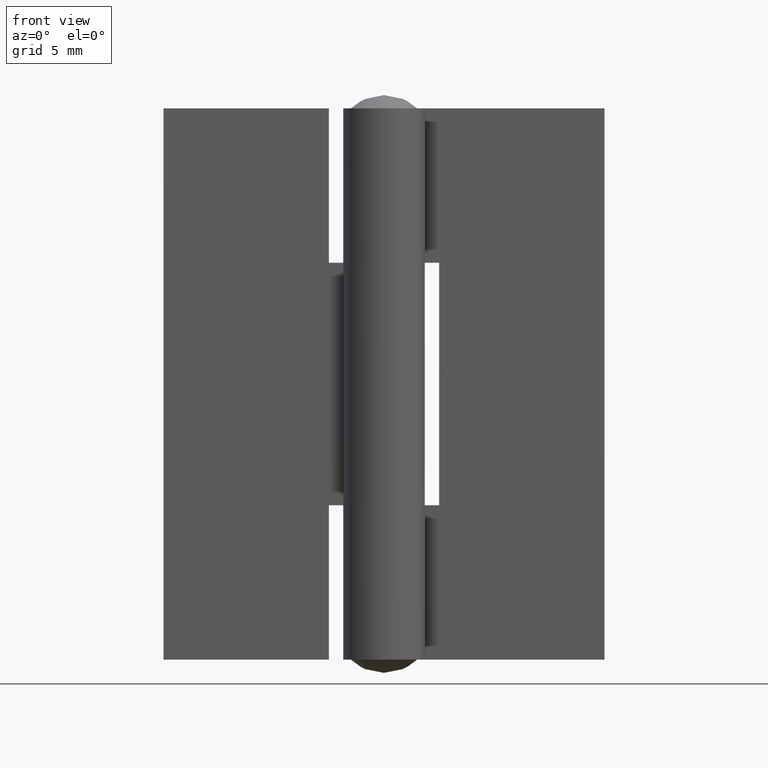
[diagram: clean part render]
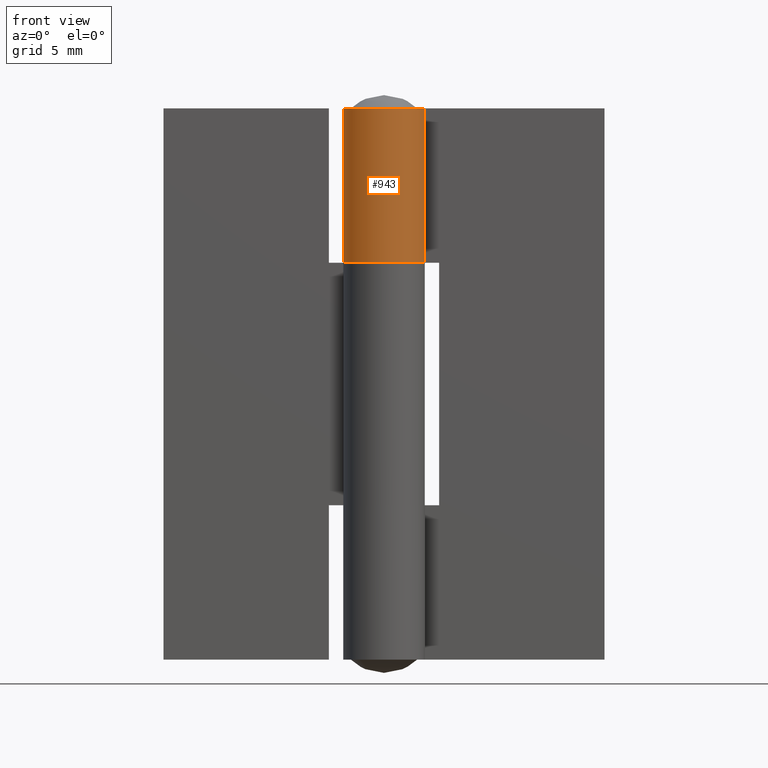
[diagram: same view with one face highlighted and labeled with its STEP entity id]
A machine part, front view. The second image highlights one B-rep face of the part: STEP entity #943.
In plain terms, the highlighted face is a freeform B-spline surface patch.
Its self-contained STEP definition (entity closure, byte-faithful):
#832=CARTESIAN_POINT('',(0.057448950785809,1.849107789733635,25.175000000000001));
#833=CARTESIAN_POINT('',(0.057448950785809,1.849107789733635,17.820625000000000));
#834=CARTESIAN_POINT('',(-2.267198140182571,1.921331019263513,25.174999999999997));
#835=CARTESIAN_POINT('',(-2.267198140182571,1.921331019263513,17.820625000000003));
#836=CARTESIAN_POINT('',(-1.814638478927861,-0.359982208997022,25.175000000000001));
#837=CARTESIAN_POINT('',(-1.814638478927861,-0.359982208997022,17.820625000000000));
#838=CARTESIAN_POINT('',(-1.362078817673150,-2.641295437257558,25.174999999999997));
#839=CARTESIAN_POINT('',(-1.362078817673150,-2.641295437257558,17.820625000000003));
#840=CARTESIAN_POINT('',(0.758960727389731,-1.687151034815807,25.175000000000001));
#841=CARTESIAN_POINT('',(0.758960727389731,-1.687151034815807,17.820625000000000));
#842=CARTESIAN_POINT('',(2.880000272452614,-0.733006632374056,25.174999999999997));
#843=CARTESIAN_POINT('',(2.880000272452614,-0.733006632374056,17.820625000000003));
#844=CARTESIAN_POINT('',(1.473180447264047,1.119035017235341,25.175000000000001));
#845=CARTESIAN_POINT('',(1.473180447264047,1.119035017235341,17.820625000000000));
#853=(BOUNDED_SURFACE()B_SPLINE_SURFACE(1,2,((#832,#834,#836,#838,#840,#842,#844),(#833,#835,#837,#839,#841,#843,#845)),.UNSPECIFIED.,.F.,.F.,.U.)B_SPLINE_SURFACE_WITH_KNOTS((2,2),(3,2,2,3),(0.0,7.354375000000008),(0.0,3.569336282050021,7.138672564100043,10.708008846150070),.UNSPECIFIED.)GEOMETRIC_REPRESENTATION_ITEM()RATIONAL_B_SPLINE_SURFACE(((1.0,0.622514636637620,1.0,0.622514636637620,1.0,0.622514636637620,1.0),(1.0,0.622514636637620,1.0,0.622514636637620,1.0,0.622514636637620,1.0)))REPRESENTATION_ITEM('')SURFACE());
#854=CARTESIAN_POINT('',(1.556437599134330,1.000000999999980,18.0));
#855=VERTEX_POINT('',#854);
#856=CARTESIAN_POINT('',(0.0,1.850000000000000,18.0));
#857=VERTEX_POINT('',#856);
#858=CARTESIAN_POINT('',(1.556437599134330,1.000000999999980,18.0));
#859=CARTESIAN_POINT('',(1.645919825635006,0.860829780855806,18.000000000000011));
#860=CARTESIAN_POINT('',(1.751801814528160,0.633910030155247,17.999999999999989));
#861=CARTESIAN_POINT('',(1.842656490412984,0.255607475621502,17.999999999999950));
#862=CARTESIAN_POINT('',(1.859953476113069,-0.057737603864439,18.000000000000110));
#863=CARTESIAN_POINT('',(1.810087848978903,-0.437303524180525,18.000000000000089));
#864=CARTESIAN_POINT('',(1.690744839417296,-0.789556189111853,17.999999999999918));
#865=CARTESIAN_POINT('',(1.488861190725547,-1.116033149587342,18.000000000000071));
#866=CARTESIAN_POINT('',(1.230694550823562,-1.399102232063447,17.999999999999918));
#867=CARTESIAN_POINT('',(0.929084791813627,-1.616700215654760,18.000000000000160));
#868=CARTESIAN_POINT('',(0.594708852214155,-1.761287309575846,17.999999999999861));
#869=CARTESIAN_POINT('',(0.290770293260022,-1.835014441136614,17.999999999999769));
#870=CARTESIAN_POINT('',(0.029767707495961,-1.855417184848889,18.000000000000160));
#871=CARTESIAN_POINT('',(-0.256528524619145,-1.839335182779288,17.999999999999989));
#872=CARTESIAN_POINT('',(-0.538198557498395,-1.780551337592821,17.999999999999869));
#873=CARTESIAN_POINT('',(-0.816174271732572,-1.667456362821217,17.999999999999979));
#874=CARTESIAN_POINT('',(-1.069102207780483,-1.518990550069348,17.999999999999719));
#875=CARTESIAN_POINT('',(-1.286755680904906,-1.340951127820679,18.000000000000131));
#876=CARTESIAN_POINT('',(-1.526615183811192,-1.067574267645642,17.999999999999961));
#877=CARTESIAN_POINT('',(-1.698438537129875,-0.766689285425438,18.000000000000011));
#878=CARTESIAN_POINT('',(-1.798458854911599,-0.456910315739383,18.0));
#879=CARTESIAN_POINT('',(-1.852753602950904,-0.155822353402806,18.0));
#880=CARTESIAN_POINT('',(-1.855388730148950,0.170798188831437,18.000000000000011));
#881=CARTESIAN_POINT('',(-1.786103945487406,0.515408104717369,18.0));
#882=CARTESIAN_POINT('',(-1.671121020139616,0.813105263296230,18.0));
#883=CARTESIAN_POINT('',(-1.502139078870080,1.099094937938763,18.000000000000021));
#884=CARTESIAN_POINT('',(-1.256193635277023,1.376938425293635,17.999999999999879));
#885=CARTESIAN_POINT('',(-0.967525397179898,1.589454287989719,18.000000000000359));
#886=CARTESIAN_POINT('',(-0.691499042985504,1.722386566346201,18.000000000000270));
#887=CARTESIAN_POINT('',(-0.381794757903553,1.821467307968923,17.999999999995492));
#888=CARTESIAN_POINT('',(-0.152728536403342,1.850036460129155,18.000000000010662));
#889=CARTESIAN_POINT('',(0.0,1.850000000000000,18.0));
#890=B_SPLINE_CURVE_WITH_KNOTS('',3,(#858,#859,#860,#861,#862,#863,#864,#865,#866,#867,#868,#869,#870,#871,#872,#873,#874,#875,#876,#877,#878,#879,#880,#881,#882,#883,#884,#885,#886,#887,#888,#889),.UNSPECIFIED.,.F.,.U.,(4,1,1,1,1,1,1,1,1,1,1,1,1,1,1,1,1,1,1,1,1,1,1,1,1,1,1,1,1,4),(0.000000114528135,0.496349072351054,0.744538283891206,1.164535107637647,1.431809446768273,1.889993571195217,2.271813463196566,2.577250648484553,3.035419288645493,3.379058500784693,3.665423549352131,3.970878595700526,4.161790382304358,4.524518864471528,4.829968298946214,5.059033198274620,5.402679579546445,5.669944953262925,6.147220301458285,6.433585749664084,6.643580717549677,7.063576610935042,7.407203785657734,7.693557695133899,8.018111380898430,8.399925808115494,8.800833840093958,9.087195856335528,9.316286591924547,9.774461188009880),.UNSPECIFIED.);
#891=EDGE_CURVE('',#855,#857,#890,.T.);
#892=ORIENTED_EDGE('',*,*,#891,.F.);
#893=CARTESIAN_POINT('',(1.556437599134330,1.000000999999980,25.0));
#894=VERTEX_POINT('',#893);
#895=CARTESIAN_POINT('',(1.556437599134330,1.000000999999980,25.0));
#896=CARTESIAN_POINT('',(1.556437599134330,1.000000999999980,18.0));
#897=QUASI_UNIFORM_CURVE('',1,(#895,#896),.UNSPECIFIED.,.F.,.U.);
#898=EDGE_CURVE('',#894,#855,#897,.T.);
#899=ORIENTED_EDGE('',*,*,#898,.F.);
#900=CARTESIAN_POINT('',(0.0,1.850000000000000,25.0));
#901=VERTEX_POINT('',#900);
#902=CARTESIAN_POINT('',(1.556437599134330,1.000000999999980,25.0));
#903=CARTESIAN_POINT('',(1.618355905515275,0.903637955449448,25.000000000000021));
#904=CARTESIAN_POINT('',(1.741905231044990,0.665328155338114,24.999999999999961));
#905=CARTESIAN_POINT('',(1.843026681019331,0.287473150423303,25.0));
#906=CARTESIAN_POINT('',(1.859491199933395,-0.127835243504097,25.000000000000039));
#907=CARTESIAN_POINT('',(1.797038492051239,-0.487519253692367,24.999999999999979));
#908=CARTESIAN_POINT('',(1.675279595897098,-0.803281128971898,25.000000000000050));
#909=CARTESIAN_POINT('',(1.533806343484956,-1.045883000384392,24.999999999999979));
#910=CARTESIAN_POINT('',(1.362988320039732,-1.260430231992279,25.000000000000082));
#911=CARTESIAN_POINT('',(1.125707274112699,-1.483274455401717,24.999999999999549));
#912=CARTESIAN_POINT('',(0.837562809860763,-1.663065875503523,25.000000000001140));
#913=CARTESIAN_POINT('',(0.491320325500630,-1.794093255870894,24.999999999998071));
#914=CARTESIAN_POINT('',(0.201855957308056,-1.847129620850378,25.000000000000870));
#915=CARTESIAN_POINT('',(-0.116771267153451,-1.853902121301326,24.999999999999609));
#916=CARTESIAN_POINT('',(-0.446312797883241,-1.809657714318856,25.000000000000529));
#917=CARTESIAN_POINT('',(-0.795881187822179,-1.684003550608237,24.999999999999389));
#918=CARTESIAN_POINT('',(-1.068779549682788,-1.518042782608670,25.000000000000352));
#919=CARTESIAN_POINT('',(-1.280021112438393,-1.343423328178305,24.999999999998959));
#920=CARTESIAN_POINT('',(-1.492292524347340,-1.113729901054172,25.000000000000728));
#921=CARTESIAN_POINT('',(-1.683153409106480,-0.802280073981456,24.999999999999790));
#922=CARTESIAN_POINT('',(-1.819065762866650,-0.409496769860061,25.000000000000028));
#923=CARTESIAN_POINT('',(-1.863722062760556,-0.027587346495995,25.000000000000011));
#924=CARTESIAN_POINT('',(-1.829695210815392,0.328687251103467,25.000000000000011));
#925=CARTESIAN_POINT('',(-1.749331056287990,0.624322498558397,25.0));
#926=CARTESIAN_POINT('',(-1.619157814194023,0.915693984815633,24.999999999999989));
#927=CARTESIAN_POINT('',(-1.413033715804921,1.216513178187346,25.000000000000149));
#928=CARTESIAN_POINT('',(-1.146736192062758,1.466232122896548,24.999999999999361));
#929=CARTESIAN_POINT('',(-0.822754445128735,1.670440903724275,25.000000000002359));
#930=CARTESIAN_POINT('',(-0.451798162522728,1.812760362609449,24.999999999995520));
#931=CARTESIAN_POINT('',(-0.152726906297478,1.850035466385973,25.000000000001549));
#932=CARTESIAN_POINT('',(0.0,1.850000000000000,25.0));
#933=B_SPLINE_CURVE_WITH_KNOTS('',3,(#902,#903,#904,#905,#906,#907,#908,#909,#910,#911,#912,#913,#914,#915,#916,#917,#918,#919,#920,#921,#922,#923,#924,#925,#926,#927,#928,#929,#930,#931,#932),.UNSPECIFIED.,.F.,.U.,(4,1,1,1,1,1,1,1,1,1,1,1,1,1,1,1,1,1,1,1,1,1,1,1,1,1,1,1,4),(0.000000114528136,0.343630365574740,0.801810207655874,1.164535107637649,1.584533950548488,1.889993571195218,2.176347133820356,2.424537322714055,2.710881007776038,3.149965491480494,3.436331568205975,3.818151860456730,4.028151496700793,4.390882049550984,4.810872176949633,5.135398812882005,5.345405507144783,5.631768563280533,6.070856658586592,6.433585749664085,6.872671453449273,7.216315057621477,7.502648336934986,7.789020645619994,8.170833199597809,8.590835440116617,8.877200888345101,9.316286591924547,9.774461188009880),.UNSPECIFIED.);
#934=EDGE_CURVE('',#894,#901,#933,.T.);
#935=ORIENTED_EDGE('',*,*,#934,.T.);
#936=CARTESIAN_POINT('',(0.0,1.850000000000000,25.0));
#937=CARTESIAN_POINT('',(0.0,1.850000000000000,18.0));
#938=QUASI_UNIFORM_CURVE('',1,(#936,#937),.UNSPECIFIED.,.F.,.U.);
#939=EDGE_CURVE('',#901,#857,#938,.T.);
#940=ORIENTED_EDGE('',*,*,#939,.T.);
#941=EDGE_LOOP('',(#892,#899,#935,#940));
#942=FACE_OUTER_BOUND('',#941,.T.);
#943=ADVANCED_FACE('',(#942),#853,.T.);